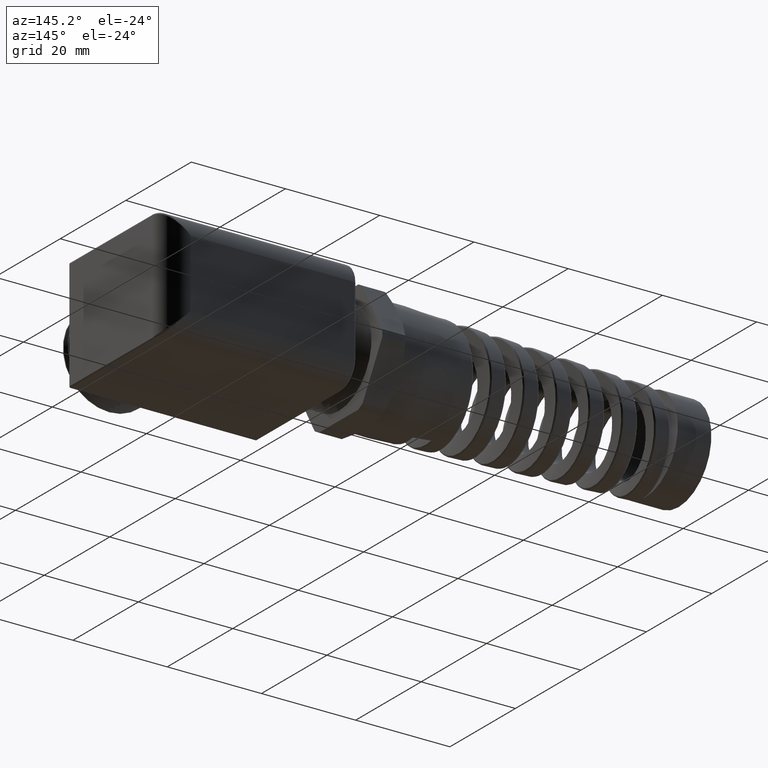
[diagram: clean part render]
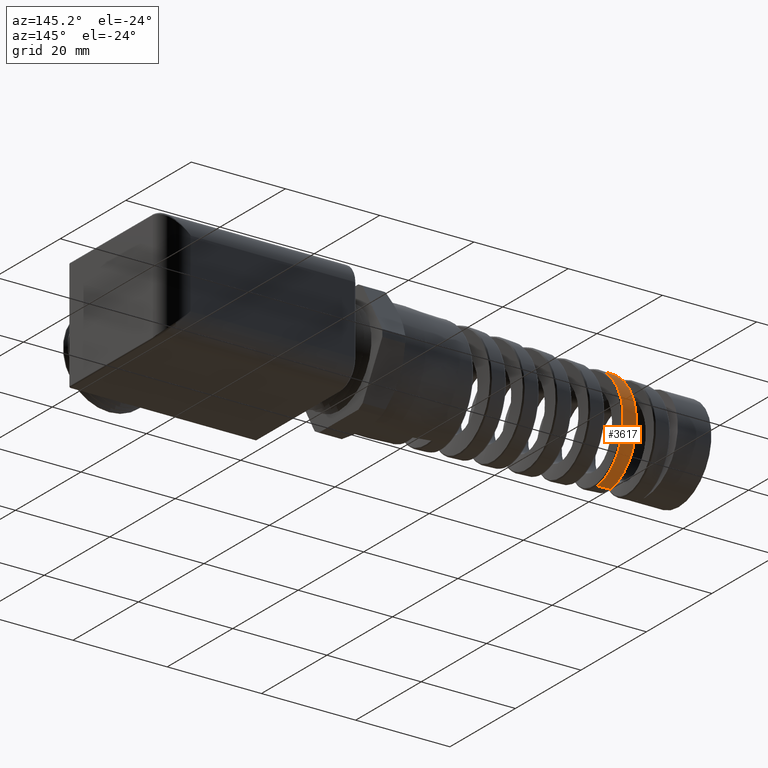
[diagram: same view with one face highlighted and labeled with its STEP entity id]
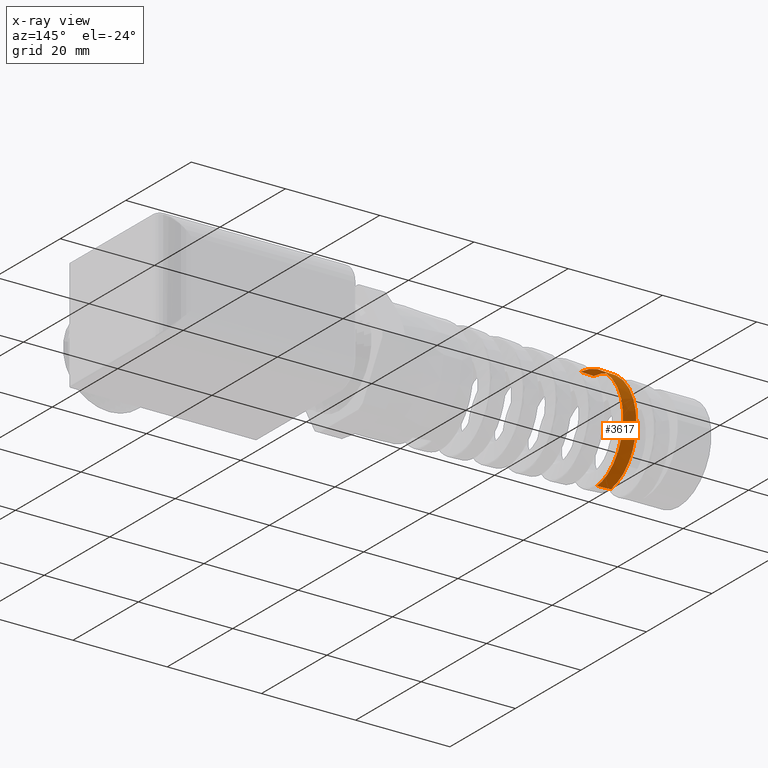
[diagram: x-ray of the same camera — body ghosted, the highlighted face saturated]
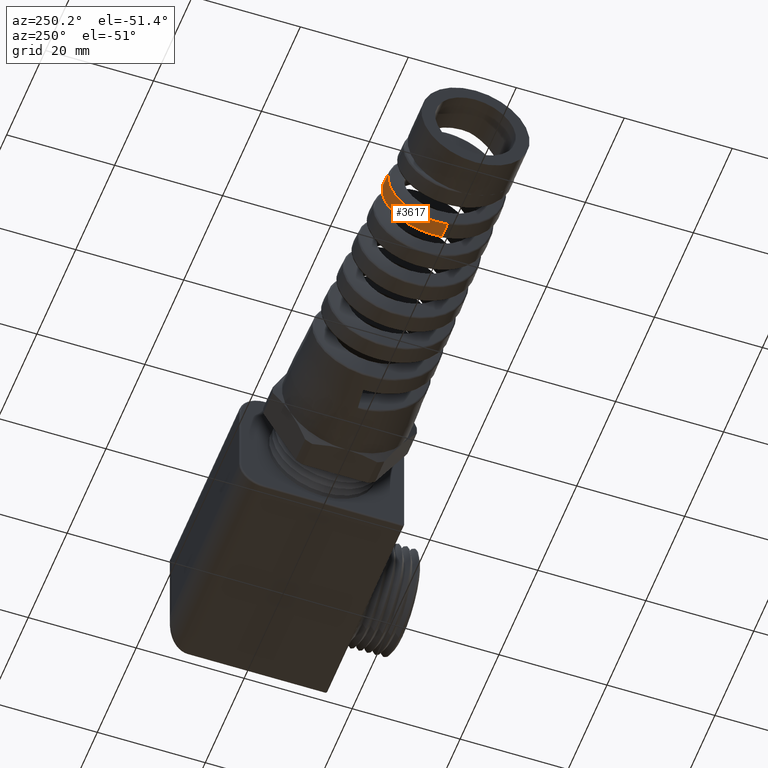
[diagram: same view with one face highlighted and labeled with its STEP entity id]
A machine part, auxiliary view. The second image highlights one B-rep face of the part: STEP entity #3617.
The next image is the same camera in x-ray: the body ghosted, the highlighted face saturated — about 0% of this face is hidden behind the body in this view.
A second angle (auxiliary view) of the same face is appended — the face is thin or edge-on in the first view.
In plain terms, the highlighted conical surface has half-angle 2 deg.
Its self-contained STEP definition (entity closure, byte-faithful):
#3594 = EDGE_CURVE ( 'NONE', #3595, #3596, #7081, .T. ) ;
#3595 = VERTEX_POINT ( 'NONE', #7082 ) ;
#3596 = VERTEX_POINT ( 'NONE', #7080 ) ;
#3597 = ORIENTED_EDGE ( 'NONE', *, *, #3598, .T. ) ;
#3598 = EDGE_CURVE ( 'NONE', #3596, #3599, #7160, .T. ) ;
#3599 = VERTEX_POINT ( 'NONE', #6941 ) ;
#3600 = VERTEX_POINT ( 'NONE', #6940 ) ;
#3617 = ADVANCED_FACE ( 'NONE', ( #6991 ), #6989, .T. ) ;
#3618 = EDGE_LOOP ( 'NONE', ( #3619, #3597, #3620, #3622 ) ) ;
#3619 = ORIENTED_EDGE ( 'NONE', *, *, #3594, .T. ) ;
#3620 = ORIENTED_EDGE ( 'NONE', *, *, #3621, .T. ) ;
#3621 = EDGE_CURVE ( 'NONE', #3599, #3600, #6973, .T. ) ;
#3622 = ORIENTED_EDGE ( 'NONE', *, *, #3623, .F. ) ;
#3623 = EDGE_CURVE ( 'NONE', #3595, #3600, #7061, .T. ) ;
#6940 = CARTESIAN_POINT ( 'NONE',  ( -2.430514158682815800, -4.621538844190168000E-013, -0.4085913324166747800 ) ) ;
#6941 = CARTESIAN_POINT ( 'NONE',  ( -2.290111757536045500, 1.157314930597645400E-016, 0.4134942923032080000 ) ) ;
#6942 = DIRECTION ( 'NONE',  ( 0.9993908270190959800, 4.273955692856292900E-018, 0.03489949670249403700 ) ) ;
#6943 = VECTOR ( 'NONE', #6942, 39.37007874015748100 ) ;
#6944 = CARTESIAN_POINT ( 'NONE',  ( -2.374747965245899800, 0.3895234853421805100, -0.1303720674994095500 ) ) ;
#6945 = CARTESIAN_POINT ( 'NONE',  ( -2.371798784077629600, 0.3973667177768171500, -0.1044494360268467800 ) ) ;
#6946 = CARTESIAN_POINT ( 'NONE',  ( -2.370334918460600600, 0.4006196287139046600, -0.09139081980813645900 ) ) ;
#6947 = CARTESIAN_POINT ( 'NONE',  ( -2.365955320236250000, 0.4084313656740659000, -0.05193379593530162600 ) ) ;
#6948 = CARTESIAN_POINT ( 'NONE',  ( -2.363053760175787100, 0.4110614159938748000, -0.02525659179166988100 ) ) ;
#6949 = CARTESIAN_POINT ( 'NONE',  ( -2.358642872403546000, 0.4110380865861882300, 0.01532314267768800800 ) ) ;
#6950 = CARTESIAN_POINT ( 'NONE',  ( -2.357166532433118400, 0.4103555850543222900, 0.02890984613962091500 ) ) ;
#6951 = CARTESIAN_POINT ( 'NONE',  ( -2.354244034568761200, 0.4076898355172527400, 0.05568136954546670100 ) ) ;
#6952 = CARTESIAN_POINT ( 'NONE',  ( -2.351335932363507900, 0.4037260520932659000, 0.08219641978847551400 ) ) ;
#6953 = CARTESIAN_POINT ( 'NONE',  ( -2.348427641078724800, 0.3972036533243425400, 0.1082027451019435400 ) ) ;
#6954 = CARTESIAN_POINT ( 'NONE',  ( -2.345504996582486300, 0.3893842308223225400, 0.1339495989597726000 ) ) ;
#6955 = CARTESIAN_POINT ( 'NONE',  ( -2.344028484792057400, 0.3847961868658638100, 0.1467609844097086400 ) ) ;
#6956 = CARTESIAN_POINT ( 'NONE',  ( -2.339621154598003000, 0.3692435591730446300, 0.1842320750186491600 ) ) ;
#6957 = CARTESIAN_POINT ( 'NONE',  ( -2.336724566186495700, 0.3565793350350788300, 0.2078566230595608200 ) ) ;
#6958 = CARTESIAN_POINT ( 'NONE',  ( -2.332361116528678400, 0.3342328148645873400, 0.2413043676199323200 ) ) ;
#6959 = CARTESIAN_POINT ( 'NONE',  ( -2.330903411854801100, 0.3262216803304223700, 0.2521197559434150700 ) ) ;
#6960 = CARTESIAN_POINT ( 'NONE',  ( -2.327967270973323500, 0.3090419009228244600, 0.2730614783755109800 ) ) ;
#6961 = CARTESIAN_POINT ( 'NONE',  ( -2.326498040541420400, 0.2999225996239017200, 0.2831173966110355200 ) ) ;
#6962 = CARTESIAN_POINT ( 'NONE',  ( -2.322128923749670300, 0.2714079348235374200, 0.3116321913284001400 ) ) ;
#6963 = CARTESIAN_POINT ( 'NONE',  ( -2.319241650011265100, 0.2507182937085824000, 0.3286378227269339300 ) ) ;
#6964 = CARTESIAN_POINT ( 'NONE',  ( -2.314864413647617100, 0.2171603809135294000, 0.3511212074319559100 ) ) ;
#6965 = CARTESIAN_POINT ( 'NONE',  ( -2.313389509490878700, 0.2054831441103772700, 0.3581412294710694700 ) ) ;
#6966 = CARTESIAN_POINT ( 'NONE',  ( -2.310461675669270900, 0.1816677313899338300, 0.3709038898494946800 ) ) ;
#6967 = CARTESIAN_POINT ( 'NONE',  ( -2.309007695911996700, 0.1695253910702034200, 0.3766602250420347200 ) ) ;
#6968 = CARTESIAN_POINT ( 'NONE',  ( -2.304656881740559300, 0.1324137274926137400, 0.3920999929864150700 ) ) ;
#6969 = CARTESIAN_POINT ( 'NONE',  ( -2.301768546287108900, 0.1067665251731748900, 0.3999714771134261800 ) ) ;
#6970 = CARTESIAN_POINT ( 'NONE',  ( -2.295905949500685900, 0.05360756574479781000, 0.4106965837750394800 ) ) ;
#6971 = CARTESIAN_POINT ( 'NONE',  ( -2.293006597395569100, 0.02678184092420084200, 0.4133932022677580500 ) ) ;
#6972 = CARTESIAN_POINT ( 'NONE',  ( -2.290111757536045500, 1.157314930597645400E-016, 0.4134942923032080000 ) ) ;
#6973 = B_SPLINE_CURVE_WITH_KNOTS ( 'NONE', 3,
 ( #6972, #6971, #6970, #6969, #6968, #6967, #6966, #6965, #6964, #6963, #6962, #6961, #6960, #6959, #6958, #6957, #6956, #6955, #6954, #6953, #6952, #6951, #6950, #6949, #6948, #6947, #6946, #6945, #6944, #7079, #7078, #7077, #7076, #7075, #7074, #7073, #7072, #7071, #7070, #7069, #7068, #7067, #7066, #7065, #7064, #7063, #7062 ),
 .UNSPECIFIED., .F., .F.,
 ( 4, 2, 2, 2, 2, 2, 2, 2, 2, 2, 1, 2, 2, 2, 2, 2, 2, 2, 2, 2, 2, 2, 2, 4 ),
 ( 0.3186811314129519000, 0.3207592205590940600, 0.3228373097052362200, 0.3238763542783073000, 0.3249153988513783200, 0.3269934879975204800, 0.3280325325705915600, 0.3290715771436626400, 0.3311496662898048000, 0.3321887108628758800, 0.3332277554359469600, 0.3342668000090180400, 0.3353058445820891200, 0.3373839337282312200, 0.3384229783013023000, 0.3394620228743733800, 0.3415401120205155400, 0.3425791565935866200, 0.3436182011666577000, 0.3456962903127998600, 0.3477743794589419600, 0.3488134240320130400, 0.3498524686050841200, 0.3519305577512262800 ),
 .UNSPECIFIED. ) ;
#6974 = DIRECTION ( 'NONE',  ( 0.0000000000000000000, 0.0000000000000000000, -1.000000000000000000 ) ) ;
#6975 = DIRECTION ( 'NONE',  ( 1.000000000000000000, 0.0000000000000000000, 0.0000000000000000000 ) ) ;
#6976 = CARTESIAN_POINT ( 'NONE',  ( -0.6720000000000001500, 0.0000000000000000000, 0.0000000000000000000 ) ) ;
#6989 = CONICAL_SURFACE ( 'NONE', #6990, 0.4699999999999998600, 0.03490658503987965200 ) ;
#6990 = AXIS2_PLACEMENT_3D ( 'NONE', #6976, #6975, #6974 ) ;
#6991 = FACE_OUTER_BOUND ( 'NONE', #3618, .T. ) ;
#7058 = DIRECTION ( 'NONE',  ( 0.9993908270190959800, 0.0000000000000000000, -0.03489949670249403700 ) ) ;
#7059 = VECTOR ( 'NONE', #7058, 39.37007874015748100 ) ;
#7060 = CARTESIAN_POINT ( 'NONE',  ( -0.6720000000000001500, 0.0000000000000000000, -0.4699999999999998600 ) ) ;
#7061 = LINE ( 'NONE', #7060, #7059 ) ;
#7062 = CARTESIAN_POINT ( 'NONE',  ( -2.430514158682815800, -4.621538844190168000E-013, -0.4085913324166747800 ) ) ;
#7063 = CARTESIAN_POINT ( 'NONE',  ( -2.427575606776496600, 0.02685410094074009900, -0.4086939489104650700 ) ) ;
#7064 = CARTESIAN_POINT ( 'NONE',  ( -2.424657855654555000, 0.05352151302679800800, -0.4061736948769829600 ) ) ;
#7065 = CARTESIAN_POINT ( 'NONE',  ( -2.420235587796131200, 0.09323057651316797600, -0.3984096855102842700 ) ) ;
#7066 = CARTESIAN_POINT ( 'NONE',  ( -2.418747197750772400, 0.1064684295592752300, -0.3951317420891811100 ) ) ;
#7067 = CARTESIAN_POINT ( 'NONE',  ( -2.415801817478417900, 0.1322900530020917100, -0.3873604372701464600 ) ) ;
#7068 = CARTESIAN_POINT ( 'NONE',  ( -2.414338222330209200, 0.1449342823071267400, -0.3828605493476256400 ) ) ;
#7069 = CARTESIAN_POINT ( 'NONE',  ( -2.409952714655962500, 0.1820813594886873400, -0.3675566614940470300 ) ) ;
#7070 = CARTESIAN_POINT ( 'NONE',  ( -2.407029400493508700, 0.2058603511922658400, -0.3549299171382212000 ) ) ;
#7071 = CARTESIAN_POINT ( 'NONE',  ( -2.401107192543813000, 0.2510085563884295000, -0.3248350609642029500 ) ) ;
#7072 = CARTESIAN_POINT ( 'NONE',  ( -2.398191397830942600, 0.2717429455453306300, -0.3078055224605086300 ) ) ;
#7073 = CARTESIAN_POINT ( 'NONE',  ( -2.393806443280442700, 0.3001812958007562500, -0.2794042024699567900 ) ) ;
#7074 = CARTESIAN_POINT ( 'NONE',  ( -2.392343497508497000, 0.3092136578540731800, -0.2694573814120845800 ) ) ;
#7075 = CARTESIAN_POINT ( 'NONE',  ( -2.389398862537051000, 0.3263611424699418600, -0.2485821514146723800 ) ) ;
#7076 = CARTESIAN_POINT ( 'NONE',  ( -2.387915867673436700, 0.3344774243264674900, -0.2376359975969027400 ) ) ;
#7077 = CARTESIAN_POINT ( 'NONE',  ( -2.383515853992030500, 0.3569084485391333900, -0.2040400797086630900 ) ) ;
#7078 = CARTESIAN_POINT ( 'NONE',  ( -2.380614854588570600, 0.3695225797929540500, -0.1804153526189833100 ) ) ;
#7079 = CARTESIAN_POINT ( 'NONE',  ( -2.376224520329632400, 0.3849502036556154400, -0.1431563731240950400 ) ) ;
#7080 = CARTESIAN_POINT ( 'NONE',  ( -2.403080198626006400, -2.254258564525016300E-017, 0.4095493474120642200 ) ) ;
#7081 = B_SPLINE_CURVE_WITH_KNOTS ( 'NONE', 3,
 ( #7205, #7204, #7203, #7202, #7201, #7200, #7199, #7198, #7197, #7196, #7195, #7194, #7193, #7192, #7191, #7190, #7189, #7188, #7187, #7186, #7185, #7184, #7183, #7182, #7181, #7180, #7179, #7178, #7177, #7176, #7175, #7174, #7173, #7172, #7171, #7170, #7169, #7168, #7167, #7166, #7165, #7164, #7163, #7162, #7161 ),
 .UNSPECIFIED., .F., .F.,
 ( 4, 2, 2, 2, 2, 2, 2, 2, 1, 2, 2, 2, 2, 2, 2, 2, 2, 2, 2, 2, 2, 2, 4 ),
 ( 0.06627685743321554100, 0.06730627135914076000, 0.06833568528506599200, 0.07039451313691642800, 0.07142392706284166100, 0.07245334098876687900, 0.07451216884061734300, 0.07554158276654256200, 0.07657099669246779400, 0.07760041061839301200, 0.07862982454431824400, 0.08068865239616869500, 0.08274748024801914500, 0.08480630809986959600, 0.08583572202579482800, 0.08686513595172004600, 0.08892396380357051000, 0.09098279165542097500, 0.09201220558134620700, 0.09304161950727143900, 0.09510044735912190400, 0.09715927521097236800, 0.09921810306282283200 ),
 .UNSPECIFIED. ) ;
#7082 = CARTESIAN_POINT ( 'NONE',  ( -2.543457390768090400, -4.930885898856704900E-014, -0.4046472678433726800 ) ) ;
#7159 = CARTESIAN_POINT ( 'NONE',  ( -0.6720000000000001500, 5.755839955992558400E-017, 0.4699999999999998600 ) ) ;
#7160 = LINE ( 'NONE', #7159, #6943 ) ;
#7161 = CARTESIAN_POINT ( 'NONE',  ( -2.403080198626006400, -2.254258564525016300E-017, 0.4095493474120642200 ) ) ;
#7162 = CARTESIAN_POINT ( 'NONE',  ( -2.405998752755985000, 0.02675158784652482300, 0.4094474292560430500 ) ) ;
#7163 = CARTESIAN_POINT ( 'NONE',  ( -2.408879916255863400, 0.05315116137069278400, 0.4067502306288235900 ) ) ;
#7164 = CARTESIAN_POINT ( 'NONE',  ( -2.414679438543459300, 0.1052479112194599500, 0.3962674719698081000 ) ) ;
#7165 = CARTESIAN_POINT ( 'NONE',  ( -2.417626346781386100, 0.1311791177154036600, 0.3883487310046343500 ) ) ;
#7166 = CARTESIAN_POINT ( 'NONE',  ( -2.423442827153490200, 0.1803025023479969700, 0.3678961552192743800 ) ) ;
#7167 = CARTESIAN_POINT ( 'NONE',  ( -2.426330670756962500, 0.2036850829038756300, 0.3553745300194911500 ) ) ;
#7168 = CARTESIAN_POINT ( 'NONE',  ( -2.430708652584839600, 0.2369645147205075300, 0.3331174607858206600 ) ) ;
#7169 = CARTESIAN_POINT ( 'NONE',  ( -2.432183685884288200, 0.2478065372519018800, 0.3250689038301765600 ) ) ;
#7170 = CARTESIAN_POINT ( 'NONE',  ( -2.435107186087046100, 0.2684590671846547900, 0.3080977066133250800 ) ) ;
#7171 = CARTESIAN_POINT ( 'NONE',  ( -2.436559959054423800, 0.2783062911288186600, 0.2991587674022681600 ) ) ;
#7172 = CARTESIAN_POINT ( 'NONE',  ( -2.440912817683031900, 0.3064406909737268400, 0.2710133382666620700 ) ) ;
#7173 = CARTESIAN_POINT ( 'NONE',  ( -2.443807048925116500, 0.3233341674705295700, 0.2504909832406241900 ) ) ;
#7174 = CARTESIAN_POINT ( 'NONE',  ( -2.449696748566646800, 0.3532316665054162100, 0.2057918056708896200 ) ) ;
#7175 = CARTESIAN_POINT ( 'NONE',  ( -2.452601116542084900, 0.3657637249130175600, 0.1823121859327925300 ) ) ;
#7176 = CARTESIAN_POINT ( 'NONE',  ( -2.456963328401076600, 0.3810245027658888400, 0.1455651075901525100 ) ) ;
#7177 = CARTESIAN_POINT ( 'NONE',  ( -2.458418623038001600, 0.3855210004732898500, 0.1330544706526931600 ) ) ;
#7178 = CARTESIAN_POINT ( 'NONE',  ( -2.461347319177889000, 0.3933068453416038200, 0.1075002045669974500 ) ) ;
#7179 = CARTESIAN_POINT ( 'NONE',  ( -2.462826218446695600, 0.3966011642420182400, 0.09440277721656434300 ) ) ;
#7180 = CARTESIAN_POINT ( 'NONE',  ( -2.467218164099561400, 0.4044454212528083000, 0.05511981451135047200 ) ) ;
#7181 = CARTESIAN_POINT ( 'NONE',  ( -2.470112641938988900, 0.4070640815836254500, 0.02872275066423582400 ) ) ;
#7182 = CARTESIAN_POINT ( 'NONE',  ( -2.475950043303596800, 0.4071380158958024000, -0.02447088850208816600 ) ) ;
#7183 = CARTESIAN_POINT ( 'NONE',  ( -2.478914891732356500, 0.4045078811776139900, -0.05145998744459235500 ) ) ;
#7184 = CARTESIAN_POINT ( 'NONE',  ( -2.484756459110141900, 0.3941783397027242000, -0.1035964535422259800 ) ) ;
#7185 = CARTESIAN_POINT ( 'NONE',  ( -2.487657969679118300, 0.3865157005836957800, -0.1290002494483619700 ) ) ;
#7186 = CARTESIAN_POINT ( 'NONE',  ( -2.492067077642114100, 0.3712023684974307700, -0.1660801194804673000 ) ) ;
#7187 = CARTESIAN_POINT ( 'NONE',  ( -2.493548831027623300, 0.3654380756646137300, -0.1782858554756783000 ) ) ;
#7188 = CARTESIAN_POINT ( 'NONE',  ( -2.496481039218011700, 0.3528705231643840500, -0.2018167811919424900 ) ) ;
#7189 = CARTESIAN_POINT ( 'NONE',  ( -2.499398001670571500, 0.3392140837174411100, -0.2246050198931647300 ) ) ;
#7190 = CARTESIAN_POINT ( 'NONE',  ( -2.502313790315464600, 0.3234185957846381600, -0.2459304446681372700 ) ) ;
#7191 = CARTESIAN_POINT ( 'NONE',  ( -2.505243289055878500, 0.3065422594255317000, -0.2665148031307263400 ) ) ;
#7192 = CARTESIAN_POINT ( 'NONE',  ( -2.506721019764372100, 0.2975239737502987100, -0.2764755224258748100 ) ) ;
#7193 = CARTESIAN_POINT ( 'NONE',  ( -2.511154062767524800, 0.2690600167881845900, -0.3049264782328883800 ) ) ;
#7194 = CARTESIAN_POINT ( 'NONE',  ( -2.514065981206746500, 0.2485059259075448900, -0.3217459614675958800 ) ) ;
#7195 = CARTESIAN_POINT ( 'NONE',  ( -2.518452508824615200, 0.2153878814766001800, -0.3438474102090182100 ) ) ;
#7196 = CARTESIAN_POINT ( 'NONE',  ( -2.519917789426514800, 0.2039646325217537000, -0.3506895082455285800 ) ) ;
#7197 = CARTESIAN_POINT ( 'NONE',  ( -2.522868939045371100, 0.1803302473756870600, -0.3632934662118297300 ) ) ;
#7198 = CARTESIAN_POINT ( 'NONE',  ( -2.524351930581943300, 0.1681386763350573600, -0.3690347932953019200 ) ) ;
#7199 = CARTESIAN_POINT ( 'NONE',  ( -2.528756682251660100, 0.1311839206957200700, -0.3842601825835437700 ) ) ;
#7200 = CARTESIAN_POINT ( 'NONE',  ( -2.531666742297414200, 0.1057897643049576100, -0.3919073438652634400 ) ) ;
#7201 = CARTESIAN_POINT ( 'NONE',  ( -2.536078617306214900, 0.06657018548858241500, -0.3996172312589066400 ) ) ;
#7202 = CARTESIAN_POINT ( 'NONE',  ( -2.537565151382763500, 0.05323369816229466700, -0.4015612844960802000 ) ) ;
#7203 = CARTESIAN_POINT ( 'NONE',  ( -2.540523210063907500, 0.02657213369159567800, -0.4040984823604055200 ) ) ;
#7204 = CARTESIAN_POINT ( 'NONE',  ( -2.541991873867667900, 0.01327116449445406500, -0.4046984448212401200 ) ) ;
#7205 = CARTESIAN_POINT ( 'NONE',  ( -2.543457390768090400, -4.930885898856704900E-014, -0.4046472678433726800 ) ) ;